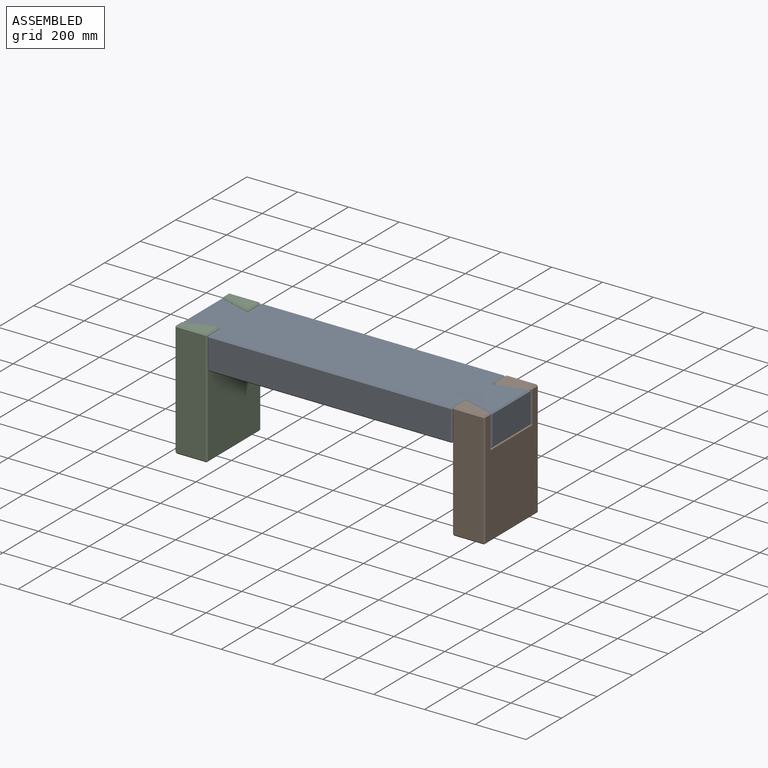
[diagram: assembled view]
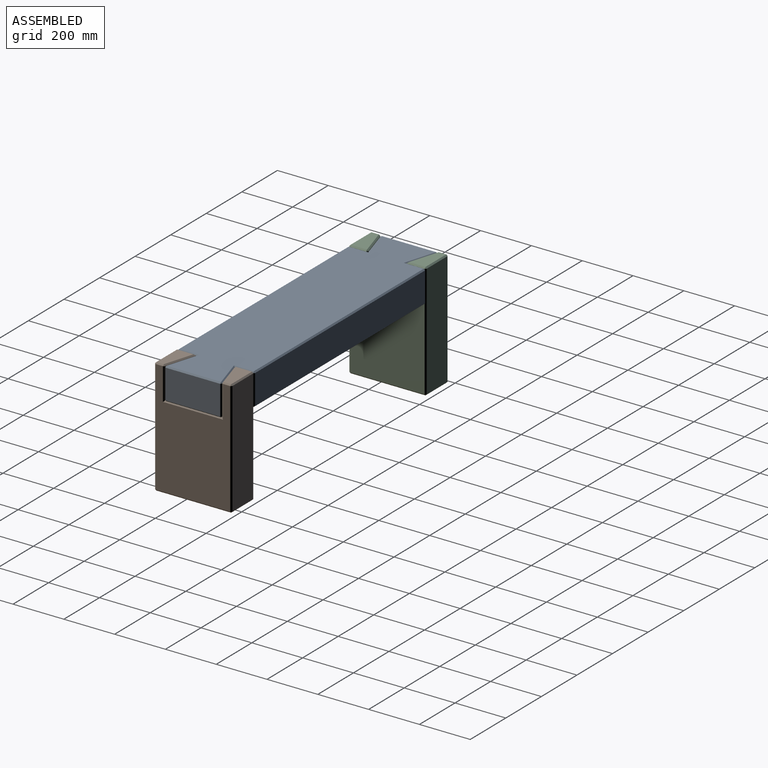
[diagram: assembled view, second angle]
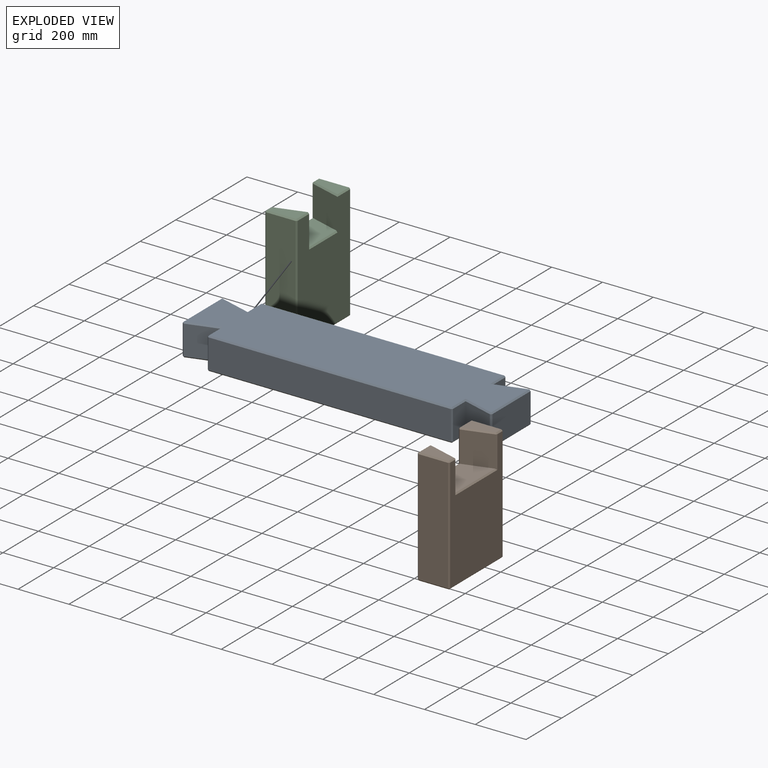
[diagram: exploded view]
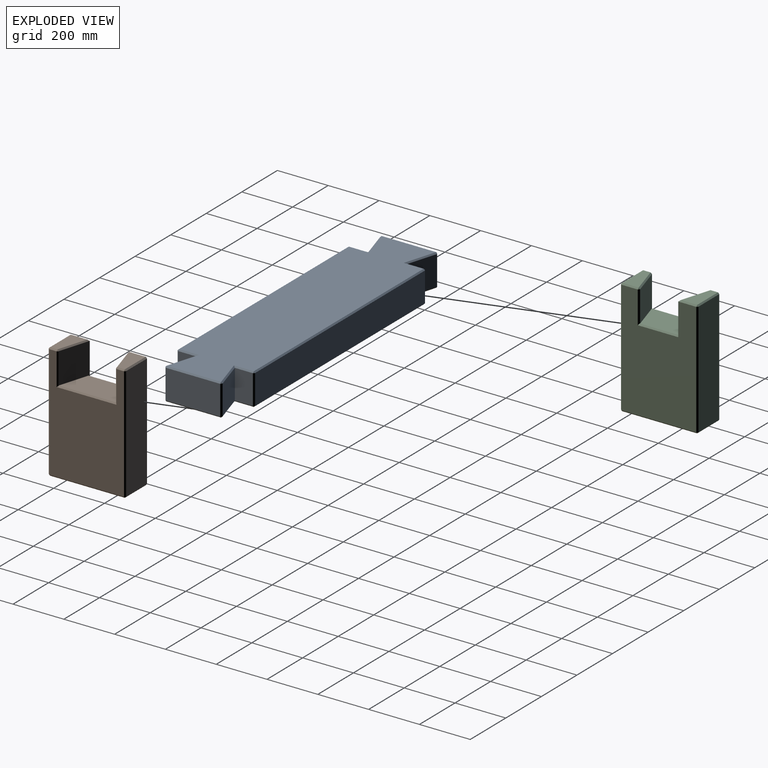
[diagram: exploded view, second angle]
ASSEMBLY  parts=3 mates=2
PART A: 62 faces, bbox 1219.2x304.8x127 mm
  f0: plane 214.94x116.84mm, normal (-1,0,0), area 25114.1mm2, adj f26,f31,f35,f36
  f1: plane 955.04x116.84mm, normal (0,-1,0), area 111586.9mm2, adj f14,f18,f19,f20
  f2: plane 214.94x116.84mm, normal (1,0,0), area 25114.1mm2, adj f33,f42,f43,f44
  f3: plane 955.04x116.84mm, normal (0,1,0), area 111586.9mm2, adj f50,f55,f58,f61
  f4: plane 1209.04x294.64mm, normal (0,0,1), area 326311.5mm2, adj f20,f21,f25,f29,f34,f35,f44,f45
  f5: plane 1209.04x294.64mm, normal (0,0,-1), area 326311.5mm2, adj f17,f18,f22,f28,f31,f32,f41,f42
  f6: plane 120.46x116.84mm, normal (0.29,0.96,0), area 14694.3mm2, adj f7,f36,f41,f45
  f7: plane 116.84x71.12mm, normal (-1,0,0), area 8309.7mm2, adj f6,f46,f49,f50
  f8: plane 116.84x71.12mm, normal (1,0,0), area 8309.7mm2, adj f9,f19,f28,f29
  f9: plane 120.46x116.84mm, normal (-0.29,-0.96,0), area 14694.3mm2, adj f8,f32,f33,f34
  f10: plane 116.84x71.12mm, normal (1,0,0), area 8309.7mm2, adj f11,f56,f57,f61
  f11: plane 120.46x116.84mm, normal (-0.29,0.96,0), area 14694.3mm2, adj f10,f43,f52,f53
  f12: plane 116.84x71.12mm, normal (-1,0,0), area 8309.7mm2, adj f13,f14,f17,f21
  f13: plane 120.46x116.84mm, normal (0.29,-0.96,0), area 14694.3mm2, adj f12,f22,f25,f26
  f14: plane 116.84x5.08mm, normal (-0.71,-0.71,0), area 839.4mm2, adj f1,f12,f15,f16
  f15: plane 5.08x5.08mm, normal (-0.58,-0.58,-0.58), area 22.3mm2, adj f14,f17,f18
  f16: plane 5.08x5.08mm, normal (-0.58,-0.58,0.58), area 22.3mm2, adj f14,f20,f21
  f17: plane 77.95x5.08mm, normal (-0.71,0,-0.71), area 535.5mm2, adj f5,f12,f15,f22
  f18: plane 955.04x5.08mm, normal (0,-0.71,-0.71), area 6861.2mm2, adj f1,f5,f15,f23
  f19: plane 116.84x5.08mm, normal (0.71,-0.71,0), area 839.4mm2, adj f1,f8,f23,f24
  f20: plane 955.04x5.08mm, normal (0,-0.71,0.71), area 6861.2mm2, adj f1,f4,f16,f24
  f21: plane 77.95x5.08mm, normal (-0.71,0,0.71), area 535.5mm2, adj f4,f12,f16,f25
  f22: plane 127x42.97mm, normal (0.2,-0.68,-0.71), area 928mm2, adj f5,f13,f17,f27
  f23: plane 5.08x5.08mm, normal (0.58,-0.58,-0.58), area 22.3mm2, adj f18,f19,f28
  f24: plane 5.08x5.08mm, normal (0.58,-0.58,0.58), area 22.3mm2, adj f19,f20,f29
  f25: plane 127x42.97mm, normal (0.2,-0.68,0.71), area 928mm2, adj f4,f13,f21,f30
  f26: plane 116.84x6.54mm, normal (-0.6,-0.8,0), area 952.4mm2, adj f0,f13,f27,f30
  f27: plane 6.54x5.08mm, normal (-0.51,-0.69,-0.51), area 24.1mm2, adj f22,f26,f31
  f28: plane 77.95x5.08mm, normal (0.71,0,-0.71), area 535.5mm2, adj f5,f8,f23,f32
  f29: plane 77.95x5.08mm, normal (0.71,0,0.71), area 535.5mm2, adj f4,f8,f24,f34
  f30: plane 6.54x5.08mm, normal (-0.51,-0.69,0.51), area 24.1mm2, adj f25,f26,f35
  f31: plane 214.94x5.08mm, normal (-0.71,0,-0.71), area 1544.2mm2, adj f0,f5,f27,f37
  f32: plane 127x42.97mm, normal (-0.2,-0.68,-0.71), area 928mm2, adj f5,f9,f28,f38
  f33: plane 116.84x6.54mm, normal (0.6,-0.8,0), area 952.4mm2, adj f2,f9,f38,f39
  f34: plane 127x42.97mm, normal (-0.2,-0.68,0.71), area 928mm2, adj f4,f9,f29,f39
  f35: plane 214.94x5.08mm, normal (-0.71,0,0.71), area 1544.2mm2, adj f0,f4,f30,f40
  f36: plane 116.84x6.54mm, normal (-0.6,0.8,0), area 952.4mm2, adj f0,f6,f37,f40
  f37: plane 6.54x5.08mm, normal (-0.51,0.69,-0.51), area 24.1mm2, adj f31,f36,f41
  f38: plane 6.54x5.08mm, normal (0.51,-0.69,-0.51), area 24.1mm2, adj f32,f33,f42
  f39: plane 6.54x5.08mm, normal (0.51,-0.69,0.51), area 24.1mm2, adj f33,f34,f44
  f40: plane 6.54x5.08mm, normal (-0.51,0.69,0.51), area 24.1mm2, adj f35,f36,f45
  f41: plane 127x42.97mm, normal (0.2,0.68,-0.71), area 928mm2, adj f5,f6,f37,f46
  f42: plane 214.94x5.08mm, normal (0.71,0,-0.71), area 1544.2mm2, adj f2,f5,f38,f47
  f43: plane 116.84x6.54mm, normal (0.6,0.8,0), area 952.4mm2, adj f2,f11,f47,f48
  f44: plane 214.94x5.08mm, normal (0.71,0,0.71), area 1544.2mm2, adj f2,f4,f39,f48
  f45: plane 127x42.97mm, normal (0.2,0.68,0.71), area 928mm2, adj f4,f6,f40,f49
  f46: plane 77.95x5.08mm, normal (-0.71,0,-0.71), area 535.5mm2, adj f5,f7,f41,f51
  f47: plane 6.54x5.08mm, normal (0.51,0.69,-0.51), area 24.1mm2, adj f42,f43,f52
  f48: plane 6.54x5.08mm, normal (0.51,0.69,0.51), area 24.1mm2, adj f43,f44,f53
  f49: plane 77.95x5.08mm, normal (-0.71,0,0.71), area 535.5mm2, adj f4,f7,f45,f54
  f50: plane 116.84x5.08mm, normal (-0.71,0.71,0), area 839.4mm2, adj f3,f7,f51,f54
  f51: plane 5.08x5.08mm, normal (-0.58,0.58,-0.58), area 22.3mm2, adj f46,f50,f55
  f52: plane 127x42.97mm, normal (-0.2,0.68,-0.71), area 928mm2, adj f5,f11,f47,f56
  f53: plane 127x42.97mm, normal (-0.2,0.68,0.71), area 928mm2, adj f4,f11,f48,f57
  f54: plane 5.08x5.08mm, normal (-0.58,0.58,0.58), area 22.3mm2, adj f49,f50,f58
  f55: plane 955.04x5.08mm, normal (0,0.71,-0.71), area 6861.2mm2, adj f3,f5,f51,f59
  f56: plane 77.95x5.08mm, normal (0.71,0,-0.71), area 535.5mm2, adj f5,f10,f52,f59
  f57: plane 77.95x5.08mm, normal (0.71,0,0.71), area 535.5mm2, adj f4,f10,f53,f60
  f58: plane 955.04x5.08mm, normal (0,0.71,0.71), area 6861.2mm2, adj f3,f4,f54,f60
  f59: plane 5.08x5.08mm, normal (0.58,0.58,-0.58), area 22.3mm2, adj f55,f56,f61
  f60: plane 5.08x5.08mm, normal (0.58,0.58,0.58), area 22.3mm2, adj f57,f58,f61
  f61: plane 116.84x5.08mm, normal (0.71,0.71,0), area 839.4mm2, adj f3,f10,f59,f60
PART B: 42 faces, bbox 127x304.8x457.2 mm
  f0: plane 116.84x64.29mm, normal (0,0,1), area 5464.2mm2, adj f12,f18,f19,f20
  f1: plane 447.04x294.64mm, normal (1,0,0), area 101723.6mm2, adj f11,f14,f17,f18,f25,f26,f35,f36
  f2: plane 447.04x116.84mm, normal (0,-1,0), area 52232.2mm2, adj f30,f35,f38,f41
  f3: plane 294.64x116.84mm, normal (0,0,-1), area 34425.7mm2, adj f27,f36,f37,f41
  f4: plane 447.04x116.84mm, normal (0,1,0), area 52232.2mm2, adj f19,f26,f27,f28
  f5: plane 116.84x64.29mm, normal (0,0,1), area 5464.2mm2, adj f24,f25,f29,f30
  f6: plane 447.04x294.64mm, normal (-1,0,0), area 111494mm2, adj f8,f10,f13,f20,f28,f29,f37,f38
  f7: plane 123.38x116.84mm, normal (0.29,-0.96,0), area 14873.5mm2, adj f9,f11,f12,f13,f14
  f8: plane 127x123.38mm, normal (0.29,0.96,0), area 15719.4mm2, adj f6,f9,f10,f14,f17,f24
  f9: plane 225.55x116.84mm, normal (0,0,1), area 22259.1mm2, adj f7,f8,f10,f13,f14
  f10: plane 160.75x5.08mm, normal (-0.71,0,0.71), area 1135.8mm2, adj f6,f8,f9,f13
  f11: plane 127x4.87mm, normal (0.8,-0.6,0), area 759.3mm2, adj f1,f7,f14,f15
  f12: plane 118.3x39.92mm, normal (0.2,-0.68,0.71), area 876.4mm2, adj f0,f7,f15,f16
  f13: plane 127x6.54mm, normal (-0.6,-0.8,0), area 1009.9mm2, adj f6,f7,f9,f10,f16
  f14: plane 236.16x5.08mm, normal (0.71,0,0.71), area 1650.7mm2, adj f1,f7,f8,f9,f11,f17
  f15: plane 5.08x5.08mm, normal (0.63,-0.47,0.63), area 19.7mm2, adj f11,f12,f18
  f16: plane 6.54x5.08mm, normal (-0.51,-0.69,0.51), area 24.1mm2, adj f12,f13,f20
  f17: plane 127x4.87mm, normal (0.8,0.6,0), area 759.3mm2, adj f1,f8,f14,f21
  f18: plane 29.24x5.08mm, normal (0.71,0,0.71), area 210.1mm2, adj f0,f1,f15,f22
  f19: plane 116.84x5.08mm, normal (0,0.71,0.71), area 839.4mm2, adj f0,f4,f22,f23
  f20: plane 64.29x5.08mm, normal (-0.71,0,0.71), area 461.9mm2, adj f0,f6,f16,f23
  f21: plane 5.08x5.08mm, normal (0.63,0.47,0.63), area 19.7mm2, adj f17,f24,f25
  f22: plane 5.08x5.08mm, normal (0.58,0.58,0.58), area 22.3mm2, adj f18,f19,f26
  f23: plane 5.08x5.08mm, normal (-0.58,0.58,0.58), area 22.3mm2, adj f19,f20,f28
  f24: plane 123.38x41.88mm, normal (0.2,0.68,0.71), area 900.9mm2, adj f5,f8,f21,f29
  f25: plane 29.24x5.08mm, normal (0.71,0,0.71), area 210.1mm2, adj f1,f5,f21,f31
  f26: plane 447.04x5.08mm, normal (0.71,0.71,0), area 3211.6mm2, adj f1,f4,f22,f32
  f27: plane 116.84x5.08mm, normal (0,0.71,-0.71), area 839.4mm2, adj f3,f4,f32,f33
  f28: plane 447.04x5.08mm, normal (-0.71,0.71,0), area 3211.6mm2, adj f4,f6,f23,f33
  f29: plane 71.12x5.08mm, normal (-0.71,0,0.71), area 486.4mm2, adj f5,f6,f24,f34
  f30: plane 116.84x5.08mm, normal (0,-0.71,0.71), area 839.4mm2, adj f2,f5,f31,f34
  f31: plane 5.08x5.08mm, normal (0.58,-0.58,0.58), area 22.3mm2, adj f25,f30,f35
  f32: plane 5.08x5.08mm, normal (0.58,0.58,-0.58), area 22.3mm2, adj f26,f27,f36
  f33: plane 5.08x5.08mm, normal (-0.58,0.58,-0.58), area 22.3mm2, adj f27,f28,f37
  f34: plane 5.08x5.08mm, normal (-0.58,-0.58,0.58), area 22.3mm2, adj f29,f30,f38
  f35: plane 447.04x5.08mm, normal (0.71,-0.71,0), area 3211.6mm2, adj f1,f2,f31,f39
  f36: plane 294.64x5.08mm, normal (0.71,0,-0.71), area 2116.8mm2, adj f1,f3,f32,f39
  f37: plane 294.64x5.08mm, normal (-0.71,0,-0.71), area 2116.8mm2, adj f3,f6,f33,f40
  f38: plane 447.04x5.08mm, normal (-0.71,-0.71,0), area 3211.6mm2, adj f2,f6,f34,f40
  f39: plane 5.08x5.08mm, normal (0.58,-0.58,-0.58), area 22.3mm2, adj f35,f36,f41
  f40: plane 5.08x5.08mm, normal (-0.58,-0.58,-0.58), area 22.3mm2, adj f37,f38,f41
  f41: plane 116.84x5.08mm, normal (0,-0.71,-0.71), area 839.4mm2, adj f2,f3,f39,f40
PART C: same geometry as B
PLACE A t=(255.31,53.45,-107.9)mm
PLACE B t=(801.54,53.49,-270.46)mm
PLACE C rot(axis=(0,0,1),180deg) t=(-290.92,53.41,-270.46)mm
MATE fastened A.f11 <-> B.f7  axis (-0.29,0.96,0) through (798.14,147.72,-107.9)mm
MATE fastened C.f7 <-> A.f13  axis (-0.29,0.96,0) through (-292.39,-42.28,-107.9)mm
